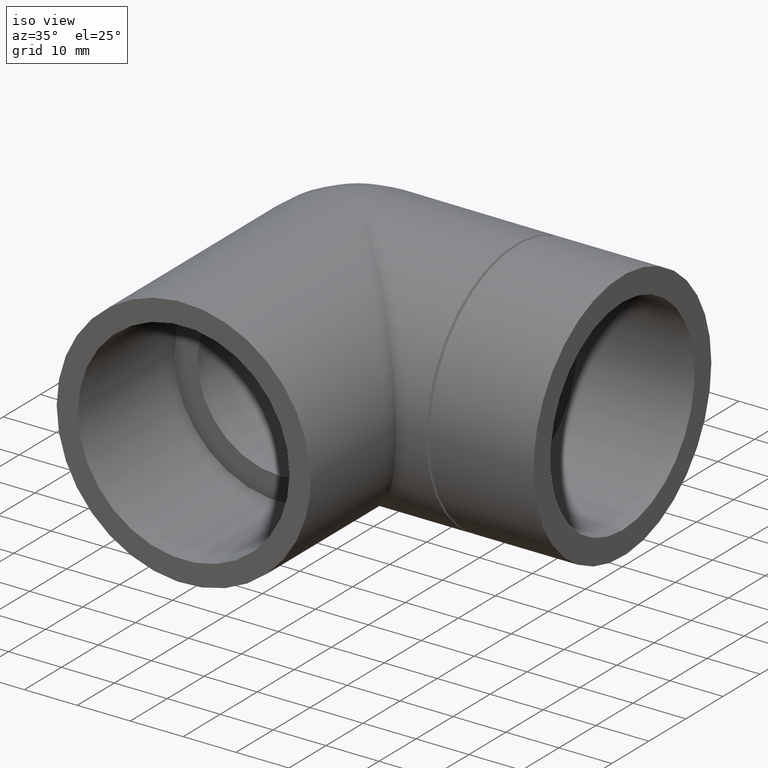
[diagram: clean part render]
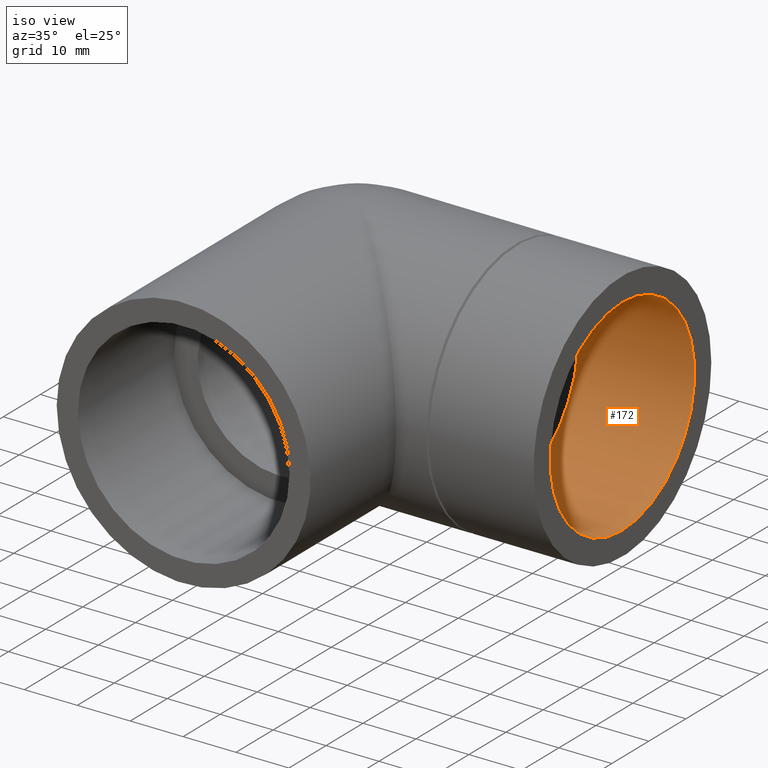
[diagram: same view with one face highlighted and labeled with its STEP entity id]
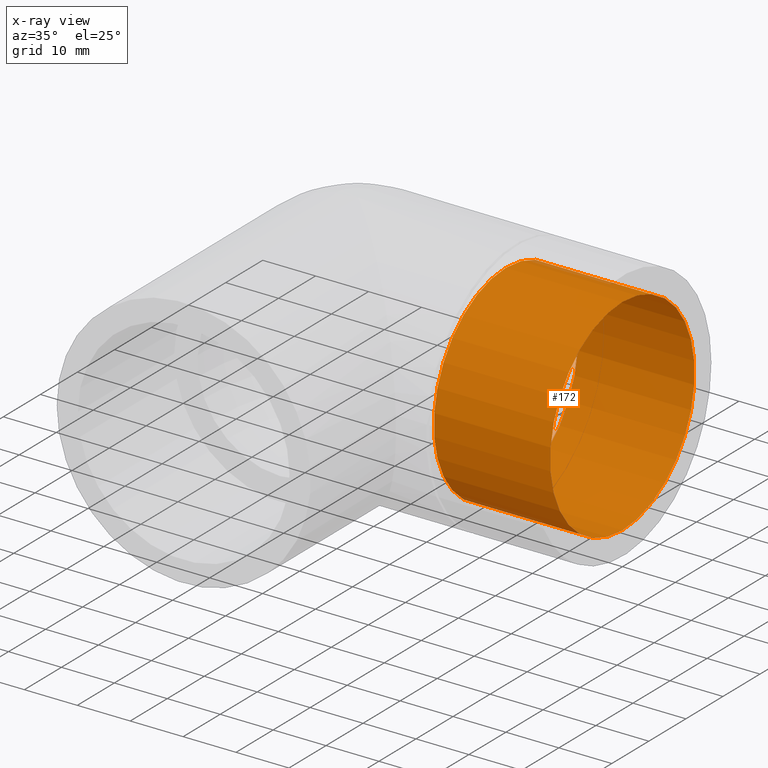
[diagram: x-ray of the same camera — body ghosted, the highlighted face saturated]
A machine part, iso view. The second image highlights one B-rep face of the part: STEP entity #172.
The next image is the same camera in x-ray: the body ghosted, the highlighted face saturated — about 1% of this face is hidden behind the body in this view.
In plain terms, the highlighted cylindrical surface (bore or boss wall) has radius 19.476 mm, axis along (-1, 0, 0).
Its self-contained STEP definition (entity closure, byte-faithful):
#29=FACE_BOUND('',#64,.T.);
#43=FACE_OUTER_BOUND('',#63,.T.);
#63=EDGE_LOOP('',(#138));
#64=EDGE_LOOP('',(#139));
#88=CIRCLE('',#196,19.476);
#89=CIRCLE('',#197,19.476);
#103=VERTEX_POINT('',#298);
#104=VERTEX_POINT('',#300);
#118=EDGE_CURVE('',#103,#103,#88,.T.);
#119=EDGE_CURVE('',#104,#104,#89,.T.);
#138=ORIENTED_EDGE('',*,*,#118,.T.);
#139=ORIENTED_EDGE('',*,*,#119,.F.);
#163=CYLINDRICAL_SURFACE('',#195,19.476);
#172=ADVANCED_FACE('',(#43,#29),#163,.F.);
#195=AXIS2_PLACEMENT_3D('',#297,#239,#240);
#196=AXIS2_PLACEMENT_3D('',#299,#241,#242);
#197=AXIS2_PLACEMENT_3D('',#301,#243,#244);
#239=DIRECTION('center_axis',(-1.,0.,0.));
#240=DIRECTION('ref_axis',(0.,0.,1.));
#241=DIRECTION('center_axis',(-1.,0.,0.));
#242=DIRECTION('ref_axis',(0.,0.,1.));
#243=DIRECTION('center_axis',(-1.,0.,0.));
#244=DIRECTION('ref_axis',(0.,0.,1.));
#297=CARTESIAN_POINT('Origin',(50.,0.,0.));
#298=CARTESIAN_POINT('',(28.,2.38512210601939E-15,-19.476));
#299=CARTESIAN_POINT('Origin',(28.,0.,0.));
#300=CARTESIAN_POINT('',(50.,2.38512210601939E-15,-19.476));
#301=CARTESIAN_POINT('Origin',(50.,0.,0.));